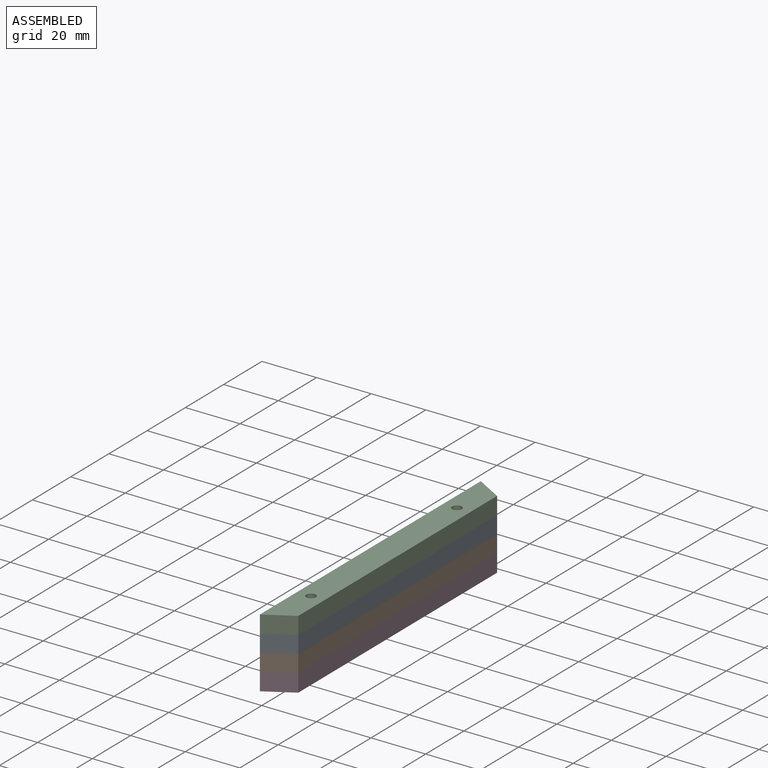
[diagram: assembled view]
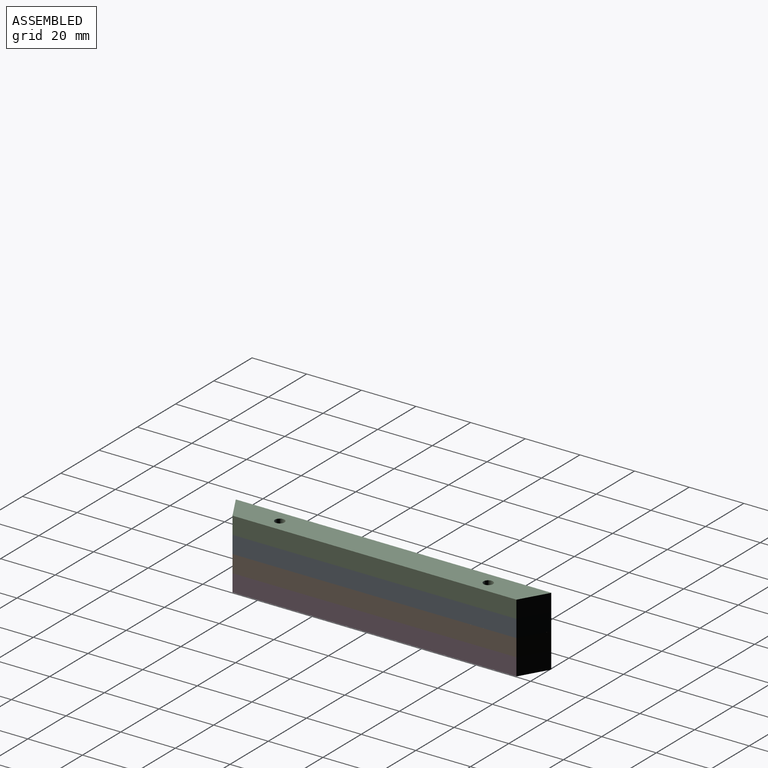
[diagram: assembled view, second angle]
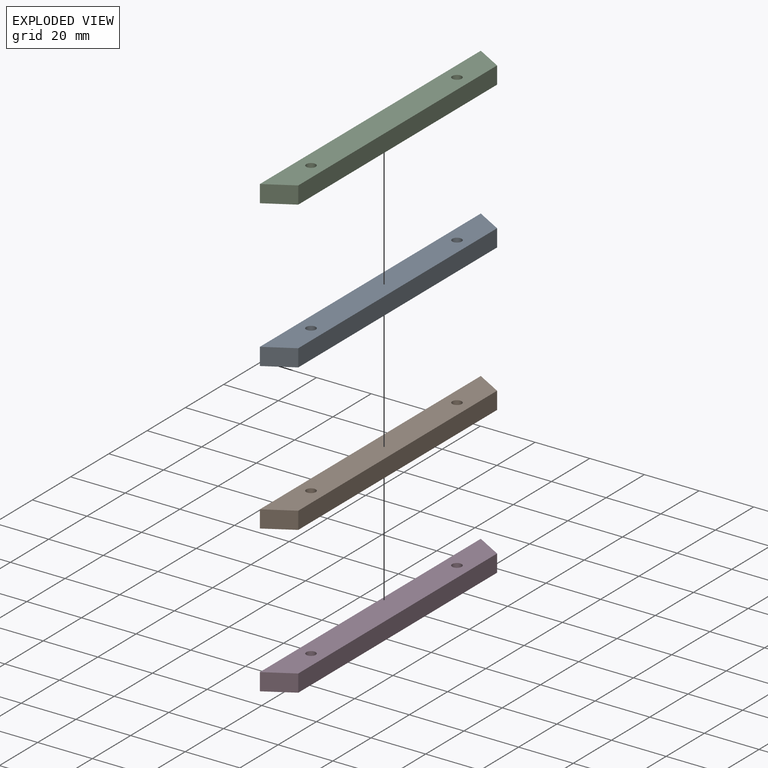
[diagram: exploded view]
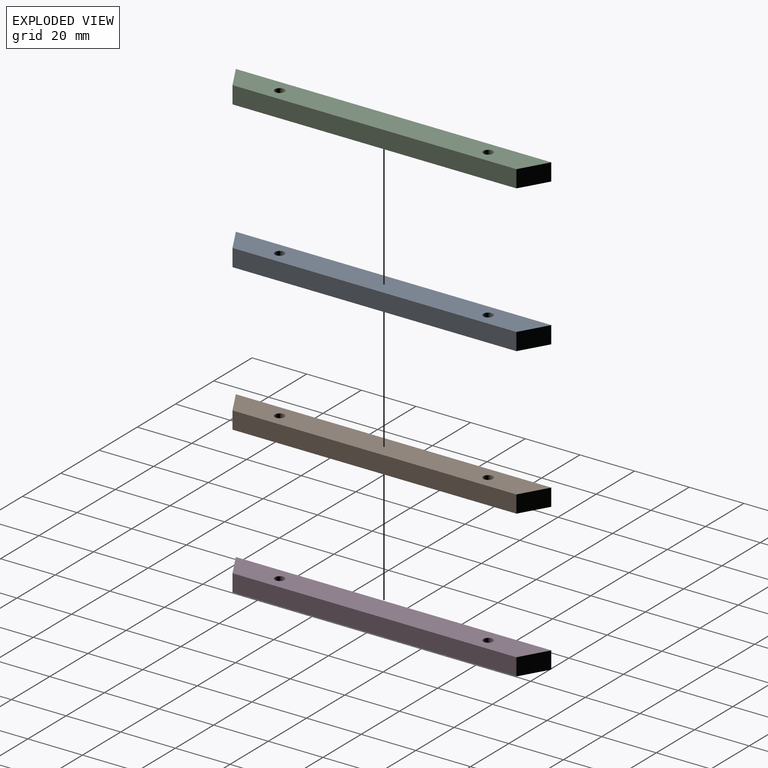
[diagram: exploded view, second angle]
ASSEMBLY  parts=4 mates=4
PART A: 8 faces, bbox 10x115.5x6.4 mm
  f0: plane 10x6.35mm, normal (0.5,-0.87,0), area 73.3mm2, adj f1,f5,f6,f7
  f1: plane 103.92x6.35mm, normal (1,0,0), area 659.9mm2, adj f0,f2,f6,f7
  f2: plane 10x6.35mm, normal (0.5,0.87,0), area 73.3mm2, adj f1,f5,f6,f7
  f3: cylinder r=1.73mm len=6.35mm, axis (0,0,-1), area 68.9mm2, adj f6,f7
  f4: cylinder r=1.73mm len=6.35mm, axis (0,0,-1), area 68.9mm2, adj f6,f7
  f5: plane 115.47x6.35mm, normal (-1,0,0), area 733.2mm2, adj f0,f2,f6,f7
  f6: plane 115.47x10mm, normal (0,0,1), area 1078.2mm2, adj f0,f1,f2,f3,f4,f5
  f7: plane 115.47x10mm, normal (0,0,-1), area 1078.2mm2, adj f0,f1,f2,f3,f4,f5
PART B: same geometry as A
PART C: same geometry as A
PART D: same geometry as A
PLACE A t=(-16.75,-5.61,28.42)mm
PLACE B t=(-16.75,-5.61,22.07)mm
PLACE C t=(-16.75,-5.61,34.77)mm
PLACE D t=(-16.75,-5.61,15.72)mm fixed
MATE fastened A.f4 <-> B.f4  axis (0,0,-1) through (-11.75,13.98,28.42)mm
MATE fastened C.f4 <-> A.f4  axis (0,0,-1) through (-11.75,13.98,34.77)mm
MATE revolute B.f4 <-> D.f4  axis (0,0,-1) through (-11.75,13.98,22.07)mm
MATE fastened B.f3 <-> D.f3  axis (0,0,-1) through (-11.75,90.27,22.07)mm
